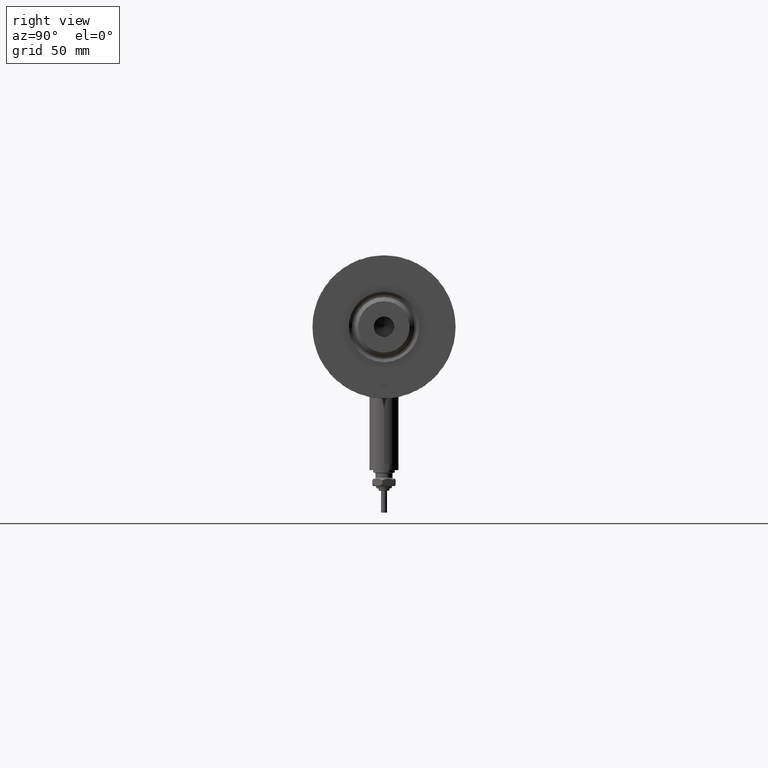
[diagram: clean part render]
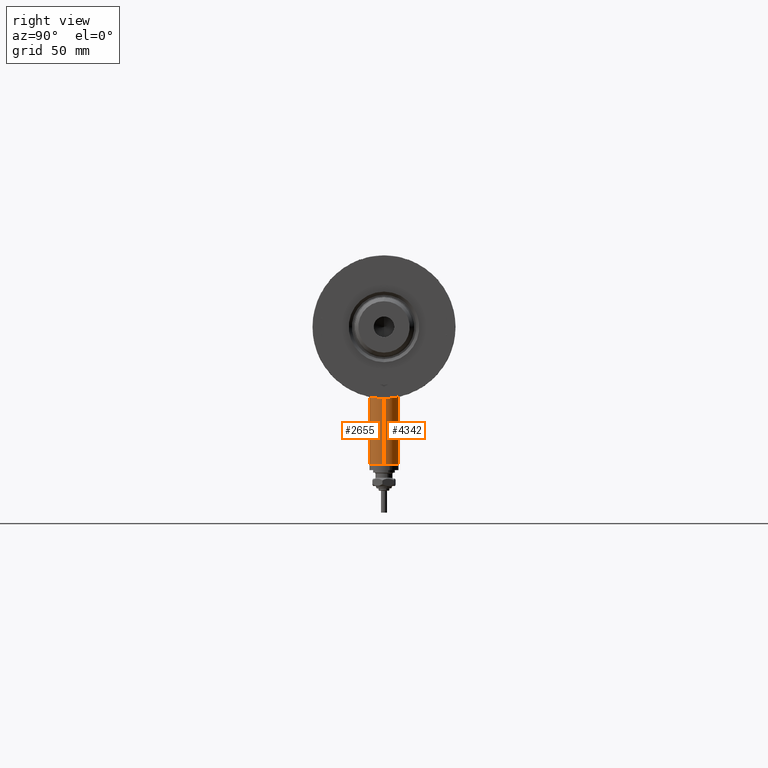
[diagram: same view with one multi-face feature highlighted, each face labeled with its STEP entity id]
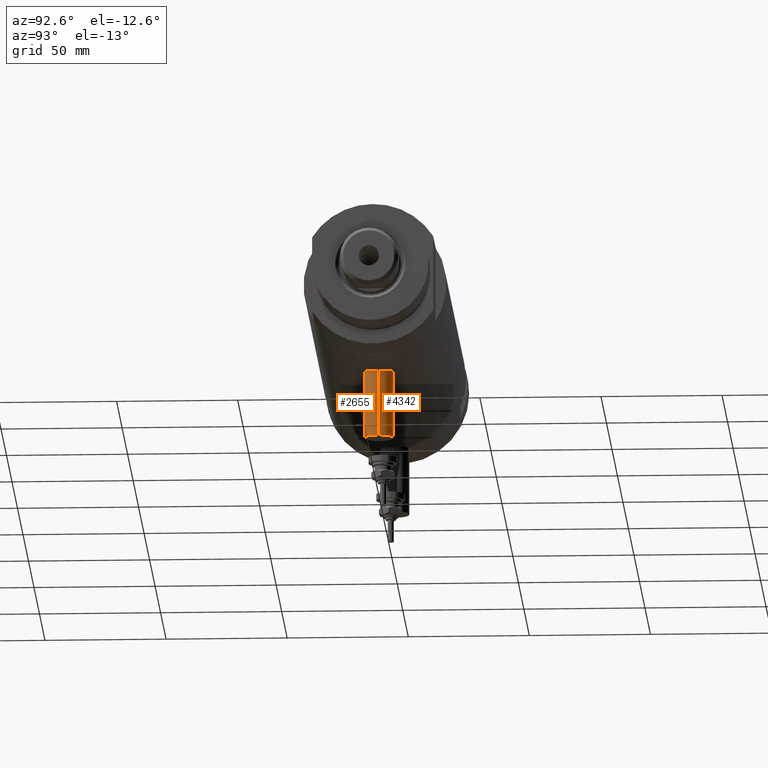
[diagram: same view with one multi-face feature highlighted, each face labeled with its STEP entity id]
A machine part, right view. The highlighted faces form ONE feature: a constant-radius fillet chain: 2 tangent blend faces with common blend radius 6 mm. The faces share edges in the B-rep.
A second angle (auxiliary view) of the same feature is appended — it is thin or edge-on in the first view.
Their STEP definitions:
[1] entity #2655 (Cylinder):
#64 = DIRECTION ( 'NONE',  ( -1.000000000000000000, 0.000000000000000000, 0.000000000000000000 ) ) ;
#93 = DIRECTION ( 'NONE',  ( 0.000000000000000000, 0.000000000000000000, -1.000000000000000000 ) ) ;
#190 = CARTESIAN_POINT ( 'NONE',  ( -28.30000000000000071, 0.000000000000000000, -72.29999999999999716 ) ) ;
#290 = ORIENTED_EDGE ( 'NONE', *, *, #2468, .F. ) ;
#695 = CARTESIAN_POINT ( 'NONE',  ( -56.60000000000000142, 0.000000000000000000, -72.29999999999999716 ) ) ;
#897 = DIRECTION ( 'NONE',  ( 0.000000000000000000, 0.000000000000000000, 1.000000000000000000 ) ) ;
#961 = CARTESIAN_POINT ( 'NONE',  ( -56.60000000000000142, 0.000000000000000000, -66.29999999999999716 ) ) ;
#984 = DIRECTION ( 'NONE',  ( -1.000000000000000000, 0.000000000000000000, 0.000000000000000000 ) ) ;
#1034 = CARTESIAN_POINT ( 'NONE',  ( -56.60000000000000142, 7.347880794884119736E-16, -60.29999999999999005 ) ) ;
#1381 = AXIS2_PLACEMENT_3D ( 'NONE', #1832, #2770, #93 ) ;
#1751 = EDGE_CURVE ( 'NONE', #1890, #3949, #4420, .T. ) ;
#1779 = AXIS2_PLACEMENT_3D ( 'NONE', #5658, #64, #2960 ) ;
#1832 = CARTESIAN_POINT ( 'NONE',  ( -56.60000000000000142, 0.000000000000000000, -66.29999999999999716 ) ) ;
#1890 = VERTEX_POINT ( 'NONE', #695 ) ;
#2076 = CIRCLE ( 'NONE', #1779, 6.000000000000005329 ) ;
#2146 = AXIS2_PLACEMENT_3D ( 'NONE', #961, #984, #897 ) ;
#2200 = CARTESIAN_POINT ( 'NONE',  ( -56.60000000000000142, 0.000000000000000000, -72.29999999999999716 ) ) ;
#2292 = CYLINDRICAL_SURFACE ( 'NONE', #1381, 6.000000000000005329 ) ;
#2319 = ORIENTED_EDGE ( 'NONE', *, *, #2389, .F. ) ;
#2333 = VECTOR ( 'NONE', #5809, 1000.000000000000000 ) ;
#2389 = EDGE_CURVE ( 'NONE', #4262, #3520, #2574, .T. ) ;
#2468 = EDGE_CURVE ( 'NONE', #1890, #4262, #3290, .T. ) ;
#2574 = LINE ( 'NONE', #4820, #5291 ) ;
#2655 = ADVANCED_FACE ( 'NONE', ( #5447 ), #2292, .T. ) ;
#2770 = DIRECTION ( 'NONE',  ( 1.000000000000000000, -0.000000000000000000, -0.000000000000000000 ) ) ;
#2960 = DIRECTION ( 'NONE',  ( 0.000000000000000000, 0.000000000000000000, 1.000000000000000000 ) ) ;
#3290 = CIRCLE ( 'NONE', #2146, 6.000000000000005329 ) ;
#3520 = VERTEX_POINT ( 'NONE', #4703 ) ;
#3949 = VERTEX_POINT ( 'NONE', #190 ) ;
#4262 = VERTEX_POINT ( 'NONE', #1034 ) ;
#4420 = LINE ( 'NONE', #2200, #2333 ) ;
#4640 = ORIENTED_EDGE ( 'NONE', *, *, #5042, .T. ) ;
#4703 = CARTESIAN_POINT ( 'NONE',  ( -28.30000000000000071, 7.347880794884119736E-16, -60.29999999999999005 ) ) ;
#4791 = DIRECTION ( 'NONE',  ( 1.000000000000000000, -0.000000000000000000, -0.000000000000000000 ) ) ;
#4820 = CARTESIAN_POINT ( 'NONE',  ( -56.60000000000000142, 7.347880794884122694E-16, -60.29999999999999005 ) ) ;
#5042 = EDGE_CURVE ( 'NONE', #3949, #3520, #2076, .T. ) ;
#5125 = EDGE_LOOP ( 'NONE', ( #2319, #290, #5597, #4640 ) ) ;
#5291 = VECTOR ( 'NONE', #4791, 1000.000000000000000 ) ;
#5447 = FACE_OUTER_BOUND ( 'NONE', #5125, .T. ) ;
#5597 = ORIENTED_EDGE ( 'NONE', *, *, #1751, .T. ) ;
#5658 = CARTESIAN_POINT ( 'NONE',  ( -28.30000000000000071, 0.000000000000000000, -66.29999999999999716 ) ) ;
#5809 = DIRECTION ( 'NONE',  ( 1.000000000000000000, -0.000000000000000000, -0.000000000000000000 ) ) ;
[2] entity #4342 (Cylinder):
#190 = CARTESIAN_POINT ( 'NONE',  ( -28.30000000000000071, 0.000000000000000000, -72.29999999999999716 ) ) ;
#415 = ORIENTED_EDGE ( 'NONE', *, *, #1751, .F. ) ;
#630 = CIRCLE ( 'NONE', #2353, 6.000000000000005329 ) ;
#695 = CARTESIAN_POINT ( 'NONE',  ( -56.60000000000000142, 0.000000000000000000, -72.29999999999999716 ) ) ;
#1034 = CARTESIAN_POINT ( 'NONE',  ( -56.60000000000000142, 7.347880794884119736E-16, -60.29999999999999005 ) ) ;
#1201 = DIRECTION ( 'NONE',  ( 1.000000000000000000, -0.000000000000000000, -0.000000000000000000 ) ) ;
#1421 = ORIENTED_EDGE ( 'NONE', *, *, #2389, .T. ) ;
#1509 = CARTESIAN_POINT ( 'NONE',  ( -28.30000000000000071, 0.000000000000000000, -66.29999999999999716 ) ) ;
#1751 = EDGE_CURVE ( 'NONE', #1890, #3949, #4420, .T. ) ;
#1890 = VERTEX_POINT ( 'NONE', #695 ) ;
#2145 = CARTESIAN_POINT ( 'NONE',  ( -56.60000000000000142, 0.000000000000000000, -66.29999999999999716 ) ) ;
#2200 = CARTESIAN_POINT ( 'NONE',  ( -56.60000000000000142, 0.000000000000000000, -72.29999999999999716 ) ) ;
#2333 = VECTOR ( 'NONE', #5809, 1000.000000000000000 ) ;
#2353 = AXIS2_PLACEMENT_3D ( 'NONE', #1509, #2890, #2441 ) ;
#2389 = EDGE_CURVE ( 'NONE', #4262, #3520, #2574, .T. ) ;
#2441 = DIRECTION ( 'NONE',  ( 0.000000000000000000, 0.000000000000000000, 1.000000000000000000 ) ) ;
#2574 = LINE ( 'NONE', #4820, #5291 ) ;
#2890 = DIRECTION ( 'NONE',  ( -1.000000000000000000, 0.000000000000000000, 0.000000000000000000 ) ) ;
#2940 = AXIS2_PLACEMENT_3D ( 'NONE', #2145, #4844, #3447 ) ;
#3026 = CYLINDRICAL_SURFACE ( 'NONE', #5214, 6.000000000000005329 ) ;
#3299 = ORIENTED_EDGE ( 'NONE', *, *, #4786, .F. ) ;
#3447 = DIRECTION ( 'NONE',  ( 0.000000000000000000, 0.000000000000000000, 1.000000000000000000 ) ) ;
#3520 = VERTEX_POINT ( 'NONE', #4703 ) ;
#3593 = CIRCLE ( 'NONE', #2940, 6.000000000000005329 ) ;
#3870 = EDGE_CURVE ( 'NONE', #3520, #3949, #630, .T. ) ;
#3908 = DIRECTION ( 'NONE',  ( 0.000000000000000000, 0.000000000000000000, -1.000000000000000000 ) ) ;
#3949 = VERTEX_POINT ( 'NONE', #190 ) ;
#4262 = VERTEX_POINT ( 'NONE', #1034 ) ;
#4342 = ADVANCED_FACE ( 'NONE', ( #5319 ), #3026, .T. ) ;
#4420 = LINE ( 'NONE', #2200, #2333 ) ;
#4664 = ORIENTED_EDGE ( 'NONE', *, *, #3870, .T. ) ;
#4703 = CARTESIAN_POINT ( 'NONE',  ( -28.30000000000000071, 7.347880794884119736E-16, -60.29999999999999005 ) ) ;
#4786 = EDGE_CURVE ( 'NONE', #4262, #1890, #3593, .T. ) ;
#4791 = DIRECTION ( 'NONE',  ( 1.000000000000000000, -0.000000000000000000, -0.000000000000000000 ) ) ;
#4820 = CARTESIAN_POINT ( 'NONE',  ( -56.60000000000000142, 7.347880794884122694E-16, -60.29999999999999005 ) ) ;
#4844 = DIRECTION ( 'NONE',  ( -1.000000000000000000, 0.000000000000000000, 0.000000000000000000 ) ) ;
#5024 = EDGE_LOOP ( 'NONE', ( #3299, #1421, #4664, #415 ) ) ;
#5201 = CARTESIAN_POINT ( 'NONE',  ( -56.60000000000000142, 0.000000000000000000, -66.29999999999999716 ) ) ;
#5214 = AXIS2_PLACEMENT_3D ( 'NONE', #5201, #1201, #3908 ) ;
#5291 = VECTOR ( 'NONE', #4791, 1000.000000000000000 ) ;
#5319 = FACE_OUTER_BOUND ( 'NONE', #5024, .T. ) ;
#5809 = DIRECTION ( 'NONE',  ( 1.000000000000000000, -0.000000000000000000, -0.000000000000000000 ) ) ;